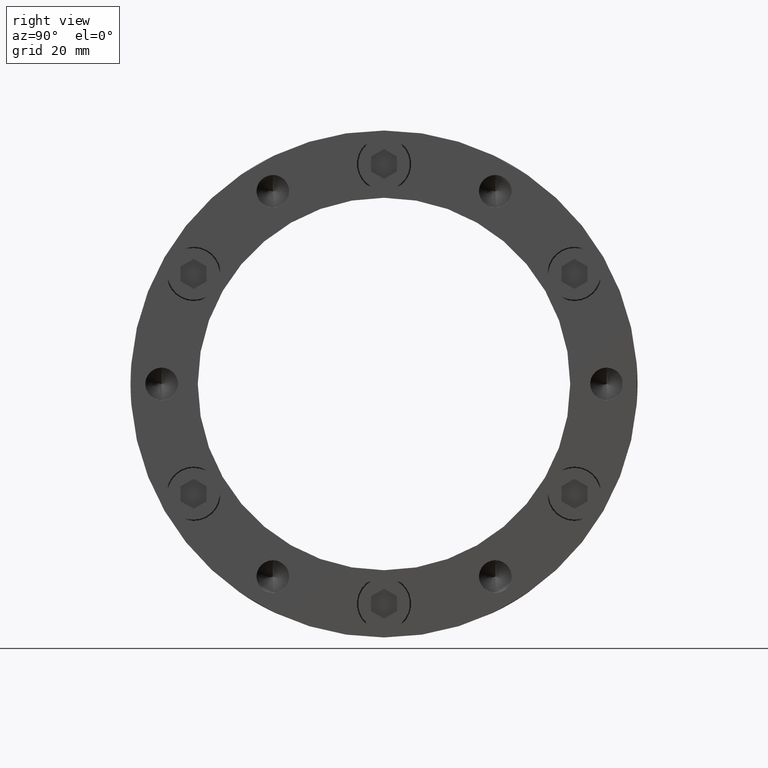
[diagram: clean part render]
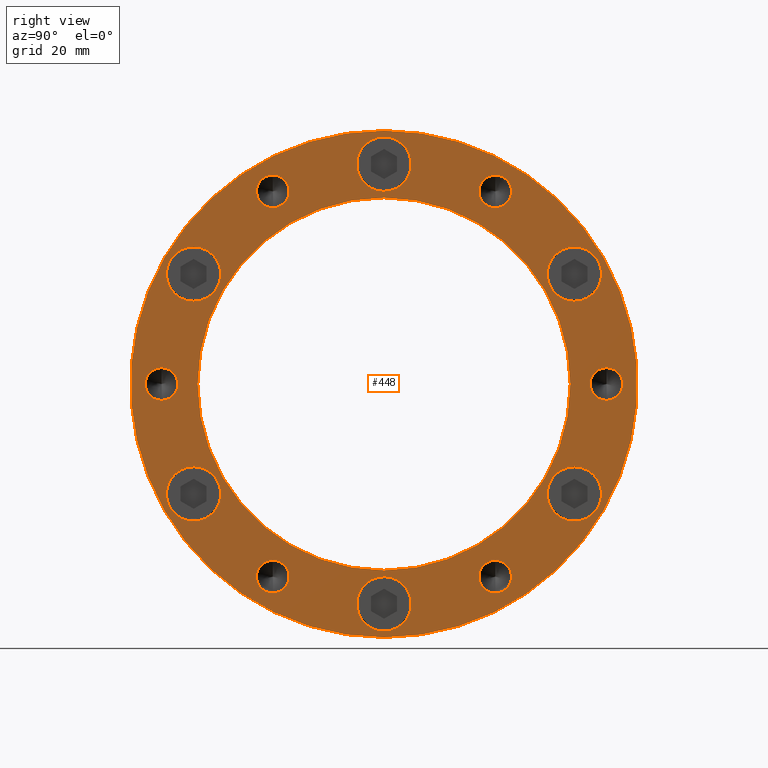
[diagram: same view with one face highlighted and labeled with its STEP entity id]
A machine part, right view. The second image highlights one B-rep face of the part: STEP entity #448.
In plain terms, the highlighted planar face has unit normal (1, 0, 0).
Its self-contained STEP definition (entity closure, byte-faithful):
#18 = EDGE_CURVE ( 'NONE', #847, #848, #1706, .T. ) ;
#22 = EDGE_CURVE ( 'NONE', #850, #851, #1711, .T. ) ;
#26 = EDGE_CURVE ( 'NONE', #854, #855, #1716, .T. ) ;
#30 = EDGE_CURVE ( 'NONE', #858, #859, #1722, .T. ) ;
#34 = EDGE_CURVE ( 'NONE', #862, #863, #1728, .T. ) ;
#38 = EDGE_CURVE ( 'NONE', #866, #867, #1734, .T. ) ;
#42 = EDGE_CURVE ( 'NONE', #870, #871, #1740, .T. ) ;
#46 = EDGE_CURVE ( 'NONE', #874, #875, #1746, .T. ) ;
#50 = EDGE_CURVE ( 'NONE', #878, #879, #1752, .T. ) ;
#54 = EDGE_CURVE ( 'NONE', #880, #1686, #1758, .T. ) ;
#58 = EDGE_CURVE ( 'NONE', #1691, #1678, #1764, .T. ) ;
#62 = EDGE_CURVE ( 'NONE', #1681, #1676, #1770, .T. ) ;
#66 = EDGE_CURVE ( 'NONE', #1697, #1692, #1776, .T. ) ;
#70 = EDGE_CURVE ( 'NONE', #1682, #1680, #1782, .T. ) ;
#90 = EDGE_CURVE ( 'NONE', #1680, #1682, #1817, .T. ) ;
#91 = EDGE_CURVE ( 'NONE', #1692, #1697, #1818, .T. ) ;
#92 = EDGE_CURVE ( 'NONE', #1676, #1681, #1819, .T. ) ;
#93 = EDGE_CURVE ( 'NONE', #1678, #1691, #1820, .T. ) ;
#94 = EDGE_CURVE ( 'NONE', #1686, #880, #1821, .T. ) ;
#95 = EDGE_CURVE ( 'NONE', #879, #878, #1822, .T. ) ;
#97 = EDGE_CURVE ( 'NONE', #875, #874, #1824, .T. ) ;
#99 = EDGE_CURVE ( 'NONE', #871, #870, #1826, .T. ) ;
#101 = EDGE_CURVE ( 'NONE', #867, #866, #1828, .T. ) ;
#103 = EDGE_CURVE ( 'NONE', #863, #862, #1830, .T. ) ;
#105 = EDGE_CURVE ( 'NONE', #859, #858, #1832, .T. ) ;
#107 = EDGE_CURVE ( 'NONE', #855, #854, #1834, .T. ) ;
#108 = EDGE_CURVE ( 'NONE', #851, #850, #1835, .T. ) ;
#109 = EDGE_CURVE ( 'NONE', #848, #847, #1836, .T. ) ;
#186 = CARTESIAN_POINT ( 'NONE',  ( 27.99999999999998900, 0.0000000000000000000, 0.0000000000000000000 ) ) ;
#187 = DIRECTION ( 'NONE',  ( -1.000000000000000000, -0.0000000000000000000, -0.0000000000000000000 ) ) ;
#188 = DIRECTION ( 'NONE',  ( 0.0000000000000000000, 0.0000000000000000000, -1.000000000000000000 ) ) ;
#196 = CARTESIAN_POINT ( 'NONE',  ( 27.99999999999999300, 0.0000000000000000000, 0.0000000000000000000 ) ) ;
#197 = DIRECTION ( 'NONE',  ( -1.000000000000000000, -0.0000000000000000000, -0.0000000000000000000 ) ) ;
#198 = DIRECTION ( 'NONE',  ( 0.0000000000000000000, 0.0000000000000000000, -1.000000000000000000 ) ) ;
#206 = CARTESIAN_POINT ( 'NONE',  ( 27.99999999999998900, 0.0000000000000000000, 42.50000000000002800 ) ) ;
#207 = DIRECTION ( 'NONE',  ( -1.000000000000000000, -0.0000000000000000000, -0.0000000000000000000 ) ) ;
#208 = DIRECTION ( 'NONE',  ( 0.0000000000000000000, 0.0000000000000000000, -1.000000000000000000 ) ) ;
#216 = CARTESIAN_POINT ( 'NONE',  ( 27.99999999999998900, -36.80607966083866200, 21.25000000000001800 ) ) ;
#217 = DIRECTION ( 'NONE',  ( -1.000000000000000000, -0.0000000000000000000, -0.0000000000000000000 ) ) ;
#218 = DIRECTION ( 'NONE',  ( 0.0000000000000000000, 0.0000000000000000000, -1.000000000000000000 ) ) ;
#226 = CARTESIAN_POINT ( 'NONE',  ( 27.99999999999998900, -36.80607966083868400, -21.25000000000000700 ) ) ;
#227 = DIRECTION ( 'NONE',  ( -1.000000000000000000, -0.0000000000000000000, -0.0000000000000000000 ) ) ;
#228 = DIRECTION ( 'NONE',  ( 0.0000000000000000000, 0.0000000000000000000, -1.000000000000000000 ) ) ;
#236 = CARTESIAN_POINT ( 'NONE',  ( 27.99999999999998900, -6.661337999999999900E-015, -42.50000000000003600 ) ) ;
#237 = DIRECTION ( 'NONE',  ( -1.000000000000000000, -0.0000000000000000000, -0.0000000000000000000 ) ) ;
#238 = DIRECTION ( 'NONE',  ( 0.0000000000000000000, 0.0000000000000000000, -1.000000000000000000 ) ) ;
#246 = CARTESIAN_POINT ( 'NONE',  ( 27.99999999999998900, 36.80607966083865500, -21.25000000000003200 ) ) ;
#247 = DIRECTION ( 'NONE',  ( -1.000000000000000000, -0.0000000000000000000, -0.0000000000000000000 ) ) ;
#248 = DIRECTION ( 'NONE',  ( 0.0000000000000000000, 0.0000000000000000000, -1.000000000000000000 ) ) ;
#256 = CARTESIAN_POINT ( 'NONE',  ( 27.99999999999998900, 36.80607966083869100, 21.24999999999998900 ) ) ;
#257 = DIRECTION ( 'NONE',  ( -1.000000000000000000, -0.0000000000000000000, -0.0000000000000000000 ) ) ;
#258 = DIRECTION ( 'NONE',  ( 0.0000000000000000000, 0.0000000000000000000, -1.000000000000000000 ) ) ;
#266 = CARTESIAN_POINT ( 'NONE',  ( 27.99999999999998900, -21.50000000000002800, 37.23909236273085100 ) ) ;
#267 = DIRECTION ( 'NONE',  ( -1.000000000000000000, -0.0000000000000000000, -0.0000000000000000000 ) ) ;
#268 = DIRECTION ( 'NONE',  ( 0.0000000000000000000, 0.0000000000000000000, -1.000000000000000000 ) ) ;
#276 = CARTESIAN_POINT ( 'NONE',  ( 27.99999999999998900, -43.00000000000000700, -2.664535000000000000E-014 ) ) ;
#277 = DIRECTION ( 'NONE',  ( -1.000000000000000000, -0.0000000000000000000, -0.0000000000000000000 ) ) ;
#278 = DIRECTION ( 'NONE',  ( 0.0000000000000000000, 0.0000000000000000000, -1.000000000000000000 ) ) ;
#286 = CARTESIAN_POINT ( 'NONE',  ( 27.99999999999998900, -21.49999999999998900, -37.23909236273087900 ) ) ;
#287 = DIRECTION ( 'NONE',  ( -1.000000000000000000, -0.0000000000000000000, -0.0000000000000000000 ) ) ;
#288 = DIRECTION ( 'NONE',  ( 0.0000000000000000000, 0.0000000000000000000, -1.000000000000000000 ) ) ;
#296 = CARTESIAN_POINT ( 'NONE',  ( 27.99999999999998900, 21.50000000000002100, -37.23909236273085800 ) ) ;
#297 = DIRECTION ( 'NONE',  ( -1.000000000000000000, -0.0000000000000000000, -0.0000000000000000000 ) ) ;
#298 = DIRECTION ( 'NONE',  ( 0.0000000000000000000, 0.0000000000000000000, -1.000000000000000000 ) ) ;
#306 = CARTESIAN_POINT ( 'NONE',  ( 27.99999999999998900, 43.00000000000000700, 1.110223000000000100E-014 ) ) ;
#307 = DIRECTION ( 'NONE',  ( -1.000000000000000000, -0.0000000000000000000, -0.0000000000000000000 ) ) ;
#308 = DIRECTION ( 'NONE',  ( 0.0000000000000000000, 0.0000000000000000000, -1.000000000000000000 ) ) ;
#318 = CARTESIAN_POINT ( 'NONE',  ( 27.99999999999998900, 21.50000000000000700, 37.23909236273086500 ) ) ;
#319 = DIRECTION ( 'NONE',  ( -1.000000000000000000, -0.0000000000000000000, -0.0000000000000000000 ) ) ;
#320 = DIRECTION ( 'NONE',  ( 0.0000000000000000000, 0.0000000000000000000, -1.000000000000000000 ) ) ;
#448 = ADVANCED_FACE ( 'NONE', ( #3002, #3010, #3006, #3004, #3008, #3011, #3012, #3013, #3014, #3015, #3016, #3017, #3018, #3019 ), #2276, .T. ) ;
#733 = AXIS2_PLACEMENT_3D ( 'NONE', #186, #187, #188 ) ;
#735 = AXIS2_PLACEMENT_3D ( 'NONE', #196, #197, #198 ) ;
#737 = AXIS2_PLACEMENT_3D ( 'NONE', #206, #207, #208 ) ;
#739 = AXIS2_PLACEMENT_3D ( 'NONE', #216, #217, #218 ) ;
#741 = AXIS2_PLACEMENT_3D ( 'NONE', #226, #227, #228 ) ;
#743 = AXIS2_PLACEMENT_3D ( 'NONE', #236, #237, #238 ) ;
#745 = AXIS2_PLACEMENT_3D ( 'NONE', #246, #247, #248 ) ;
#747 = AXIS2_PLACEMENT_3D ( 'NONE', #256, #257, #258 ) ;
#749 = AXIS2_PLACEMENT_3D ( 'NONE', #266, #267, #268 ) ;
#751 = AXIS2_PLACEMENT_3D ( 'NONE', #276, #277, #278 ) ;
#753 = AXIS2_PLACEMENT_3D ( 'NONE', #286, #287, #288 ) ;
#755 = AXIS2_PLACEMENT_3D ( 'NONE', #296, #297, #298 ) ;
#757 = AXIS2_PLACEMENT_3D ( 'NONE', #306, #307, #308 ) ;
#759 = AXIS2_PLACEMENT_3D ( 'NONE', #318, #319, #320 ) ;
#766 = AXIS2_PLACEMENT_3D ( 'NONE', #1963, #1964, #1965 ) ;
#767 = AXIS2_PLACEMENT_3D ( 'NONE', #1966, #1967, #1968 ) ;
#768 = AXIS2_PLACEMENT_3D ( 'NONE', #1969, #1970, #1971 ) ;
#769 = AXIS2_PLACEMENT_3D ( 'NONE', #1972, #1973, #1974 ) ;
#770 = AXIS2_PLACEMENT_3D ( 'NONE', #1975, #1976, #1977 ) ;
#771 = AXIS2_PLACEMENT_3D ( 'NONE', #1978, #1979, #1980 ) ;
#773 = AXIS2_PLACEMENT_3D ( 'NONE', #1984, #1985, #1986 ) ;
#775 = AXIS2_PLACEMENT_3D ( 'NONE', #1990, #1991, #1992 ) ;
#777 = AXIS2_PLACEMENT_3D ( 'NONE', #1996, #1997, #1998 ) ;
#779 = AXIS2_PLACEMENT_3D ( 'NONE', #2002, #2003, #2004 ) ;
#781 = AXIS2_PLACEMENT_3D ( 'NONE', #2008, #2009, #2010 ) ;
#783 = AXIS2_PLACEMENT_3D ( 'NONE', #2014, #2015, #2016 ) ;
#847 = VERTEX_POINT ( 'NONE', #4183 ) ;
#848 = VERTEX_POINT ( 'NONE', #4184 ) ;
#850 = VERTEX_POINT ( 'NONE', #4186 ) ;
#851 = VERTEX_POINT ( 'NONE', #4187 ) ;
#854 = VERTEX_POINT ( 'NONE', #4190 ) ;
#855 = VERTEX_POINT ( 'NONE', #4191 ) ;
#858 = VERTEX_POINT ( 'NONE', #4194 ) ;
#859 = VERTEX_POINT ( 'NONE', #4195 ) ;
#862 = VERTEX_POINT ( 'NONE', #4198 ) ;
#863 = VERTEX_POINT ( 'NONE', #4199 ) ;
#866 = VERTEX_POINT ( 'NONE', #4202 ) ;
#867 = VERTEX_POINT ( 'NONE', #4203 ) ;
#870 = VERTEX_POINT ( 'NONE', #4206 ) ;
#871 = VERTEX_POINT ( 'NONE', #4207 ) ;
#874 = VERTEX_POINT ( 'NONE', #4210 ) ;
#875 = VERTEX_POINT ( 'NONE', #4211 ) ;
#878 = VERTEX_POINT ( 'NONE', #4214 ) ;
#879 = VERTEX_POINT ( 'NONE', #4215 ) ;
#880 = VERTEX_POINT ( 'NONE', #4216 ) ;
#1245 = EDGE_LOOP ( 'NONE', ( #1399, #1400 ) ) ;
#1246 = EDGE_LOOP ( 'NONE', ( #1409, #1410 ) ) ;
#1248 = EDGE_LOOP ( 'NONE', ( #1401, #1402 ) ) ;
#1249 = EDGE_LOOP ( 'NONE', ( #1407, #1408 ) ) ;
#1250 = EDGE_LOOP ( 'NONE', ( #1405, #1406 ) ) ;
#1251 = EDGE_LOOP ( 'NONE', ( #1403, #1404 ) ) ;
#1252 = EDGE_LOOP ( 'NONE', ( #1411, #1412 ) ) ;
#1253 = EDGE_LOOP ( 'NONE', ( #1413, #1414 ) ) ;
#1254 = EDGE_LOOP ( 'NONE', ( #1415, #1416 ) ) ;
#1255 = EDGE_LOOP ( 'NONE', ( #1417, #1418 ) ) ;
#1256 = EDGE_LOOP ( 'NONE', ( #1419, #1420 ) ) ;
#1257 = EDGE_LOOP ( 'NONE', ( #1421, #1422 ) ) ;
#1258 = EDGE_LOOP ( 'NONE', ( #1423, #1424 ) ) ;
#1259 = EDGE_LOOP ( 'NONE', ( #1425, #1426 ) ) ;
#1399 = ORIENTED_EDGE ( 'NONE', *, *, #22, .T. ) ;
#1400 = ORIENTED_EDGE ( 'NONE', *, *, #108, .T. ) ;
#1401 = ORIENTED_EDGE ( 'NONE', *, *, #26, .T. ) ;
#1402 = ORIENTED_EDGE ( 'NONE', *, *, #107, .T. ) ;
#1403 = ORIENTED_EDGE ( 'NONE', *, *, #30, .T. ) ;
#1404 = ORIENTED_EDGE ( 'NONE', *, *, #105, .T. ) ;
#1405 = ORIENTED_EDGE ( 'NONE', *, *, #34, .T. ) ;
#1406 = ORIENTED_EDGE ( 'NONE', *, *, #103, .T. ) ;
#1407 = ORIENTED_EDGE ( 'NONE', *, *, #38, .T. ) ;
#1408 = ORIENTED_EDGE ( 'NONE', *, *, #101, .T. ) ;
#1409 = ORIENTED_EDGE ( 'NONE', *, *, #42, .T. ) ;
#1410 = ORIENTED_EDGE ( 'NONE', *, *, #99, .T. ) ;
#1411 = ORIENTED_EDGE ( 'NONE', *, *, #46, .T. ) ;
#1412 = ORIENTED_EDGE ( 'NONE', *, *, #97, .T. ) ;
#1413 = ORIENTED_EDGE ( 'NONE', *, *, #50, .T. ) ;
#1414 = ORIENTED_EDGE ( 'NONE', *, *, #95, .T. ) ;
#1415 = ORIENTED_EDGE ( 'NONE', *, *, #54, .T. ) ;
#1416 = ORIENTED_EDGE ( 'NONE', *, *, #94, .T. ) ;
#1417 = ORIENTED_EDGE ( 'NONE', *, *, #58, .T. ) ;
#1418 = ORIENTED_EDGE ( 'NONE', *, *, #93, .T. ) ;
#1419 = ORIENTED_EDGE ( 'NONE', *, *, #62, .T. ) ;
#1420 = ORIENTED_EDGE ( 'NONE', *, *, #92, .T. ) ;
#1421 = ORIENTED_EDGE ( 'NONE', *, *, #66, .T. ) ;
#1422 = ORIENTED_EDGE ( 'NONE', *, *, #91, .T. ) ;
#1423 = ORIENTED_EDGE ( 'NONE', *, *, #70, .T. ) ;
#1424 = ORIENTED_EDGE ( 'NONE', *, *, #90, .T. ) ;
#1425 = ORIENTED_EDGE ( 'NONE', *, *, #109, .F. ) ;
#1426 = ORIENTED_EDGE ( 'NONE', *, *, #18, .F. ) ;
#1676 = VERTEX_POINT ( 'NONE', #4219 ) ;
#1678 = VERTEX_POINT ( 'NONE', #4222 ) ;
#1680 = VERTEX_POINT ( 'NONE', #4223 ) ;
#1681 = VERTEX_POINT ( 'NONE', #4217 ) ;
#1682 = VERTEX_POINT ( 'NONE', #4224 ) ;
#1686 = VERTEX_POINT ( 'NONE', #4227 ) ;
#1691 = VERTEX_POINT ( 'NONE', #4232 ) ;
#1692 = VERTEX_POINT ( 'NONE', #4233 ) ;
#1697 = VERTEX_POINT ( 'NONE', #4238 ) ;
#1706 = CIRCLE ( 'NONE', #733, 49.00000000000000000 ) ;
#1711 = CIRCLE ( 'NONE', #735, 36.00000000000000700 ) ;
#1716 = CIRCLE ( 'NONE', #737, 5.249999999999997300 ) ;
#1722 = CIRCLE ( 'NONE', #739, 5.250000000000000900 ) ;
#1728 = CIRCLE ( 'NONE', #741, 5.250000000000000900 ) ;
#1734 = CIRCLE ( 'NONE', #743, 5.249999999999997300 ) ;
#1740 = CIRCLE ( 'NONE', #745, 5.250000000000000900 ) ;
#1746 = CIRCLE ( 'NONE', #747, 5.250000000000000900 ) ;
#1752 = CIRCLE ( 'NONE', #749, 3.149999999999999900 ) ;
#1758 = CIRCLE ( 'NONE', #751, 3.149999999999999900 ) ;
#1764 = CIRCLE ( 'NONE', #753, 3.149999999999999900 ) ;
#1770 = CIRCLE ( 'NONE', #755, 3.149999999999999900 ) ;
#1776 = CIRCLE ( 'NONE', #757, 3.149999999999999900 ) ;
#1782 = CIRCLE ( 'NONE', #759, 3.149999999999999900 ) ;
#1817 = CIRCLE ( 'NONE', #766, 3.149999999999999900 ) ;
#1818 = CIRCLE ( 'NONE', #767, 3.149999999999999900 ) ;
#1819 = CIRCLE ( 'NONE', #768, 3.149999999999999900 ) ;
#1820 = CIRCLE ( 'NONE', #769, 3.149999999999999900 ) ;
#1821 = CIRCLE ( 'NONE', #770, 3.149999999999999900 ) ;
#1822 = CIRCLE ( 'NONE', #771, 3.149999999999999900 ) ;
#1824 = CIRCLE ( 'NONE', #773, 5.250000000000000900 ) ;
#1826 = CIRCLE ( 'NONE', #775, 5.250000000000000900 ) ;
#1828 = CIRCLE ( 'NONE', #777, 5.249999999999997300 ) ;
#1830 = CIRCLE ( 'NONE', #779, 5.250000000000000900 ) ;
#1832 = CIRCLE ( 'NONE', #781, 5.250000000000000900 ) ;
#1834 = CIRCLE ( 'NONE', #783, 5.249999999999997300 ) ;
#1835 = CIRCLE ( 'NONE', #4508, 36.00000000000000700 ) ;
#1836 = CIRCLE ( 'NONE', #4509, 49.00000000000000000 ) ;
#1963 = CARTESIAN_POINT ( 'NONE',  ( 27.99999999999998900, 21.50000000000000700, 37.23909236273086500 ) ) ;
#1964 = DIRECTION ( 'NONE',  ( -1.000000000000000000, -0.0000000000000000000, -0.0000000000000000000 ) ) ;
#1965 = DIRECTION ( 'NONE',  ( 0.0000000000000000000, 0.0000000000000000000, -1.000000000000000000 ) ) ;
#1966 = CARTESIAN_POINT ( 'NONE',  ( 27.99999999999998900, 43.00000000000000700, 1.110223000000000100E-014 ) ) ;
#1967 = DIRECTION ( 'NONE',  ( -1.000000000000000000, -0.0000000000000000000, -0.0000000000000000000 ) ) ;
#1968 = DIRECTION ( 'NONE',  ( 0.0000000000000000000, 0.0000000000000000000, -1.000000000000000000 ) ) ;
#1969 = CARTESIAN_POINT ( 'NONE',  ( 27.99999999999998900, 21.50000000000002100, -37.23909236273085800 ) ) ;
#1970 = DIRECTION ( 'NONE',  ( -1.000000000000000000, -0.0000000000000000000, -0.0000000000000000000 ) ) ;
#1971 = DIRECTION ( 'NONE',  ( 0.0000000000000000000, 0.0000000000000000000, -1.000000000000000000 ) ) ;
#1972 = CARTESIAN_POINT ( 'NONE',  ( 27.99999999999998900, -21.49999999999998900, -37.23909236273087900 ) ) ;
#1973 = DIRECTION ( 'NONE',  ( -1.000000000000000000, -0.0000000000000000000, -0.0000000000000000000 ) ) ;
#1974 = DIRECTION ( 'NONE',  ( 0.0000000000000000000, 0.0000000000000000000, -1.000000000000000000 ) ) ;
#1975 = CARTESIAN_POINT ( 'NONE',  ( 27.99999999999998900, -43.00000000000000700, -2.664535000000000000E-014 ) ) ;
#1976 = DIRECTION ( 'NONE',  ( -1.000000000000000000, -0.0000000000000000000, -0.0000000000000000000 ) ) ;
#1977 = DIRECTION ( 'NONE',  ( 0.0000000000000000000, 0.0000000000000000000, -1.000000000000000000 ) ) ;
#1978 = CARTESIAN_POINT ( 'NONE',  ( 27.99999999999998900, -21.50000000000002800, 37.23909236273085100 ) ) ;
#1979 = DIRECTION ( 'NONE',  ( -1.000000000000000000, -0.0000000000000000000, -0.0000000000000000000 ) ) ;
#1980 = DIRECTION ( 'NONE',  ( 0.0000000000000000000, 0.0000000000000000000, -1.000000000000000000 ) ) ;
#1984 = CARTESIAN_POINT ( 'NONE',  ( 27.99999999999998900, 36.80607966083869100, 21.24999999999998900 ) ) ;
#1985 = DIRECTION ( 'NONE',  ( -1.000000000000000000, -0.0000000000000000000, -0.0000000000000000000 ) ) ;
#1986 = DIRECTION ( 'NONE',  ( 0.0000000000000000000, 0.0000000000000000000, -1.000000000000000000 ) ) ;
#1990 = CARTESIAN_POINT ( 'NONE',  ( 27.99999999999998900, 36.80607966083865500, -21.25000000000003200 ) ) ;
#1991 = DIRECTION ( 'NONE',  ( -1.000000000000000000, -0.0000000000000000000, -0.0000000000000000000 ) ) ;
#1992 = DIRECTION ( 'NONE',  ( 0.0000000000000000000, 0.0000000000000000000, -1.000000000000000000 ) ) ;
#1996 = CARTESIAN_POINT ( 'NONE',  ( 27.99999999999998900, -6.661337999999999900E-015, -42.50000000000003600 ) ) ;
#1997 = DIRECTION ( 'NONE',  ( -1.000000000000000000, -0.0000000000000000000, -0.0000000000000000000 ) ) ;
#1998 = DIRECTION ( 'NONE',  ( 0.0000000000000000000, 0.0000000000000000000, -1.000000000000000000 ) ) ;
#2002 = CARTESIAN_POINT ( 'NONE',  ( 27.99999999999998900, -36.80607966083868400, -21.25000000000000700 ) ) ;
#2003 = DIRECTION ( 'NONE',  ( -1.000000000000000000, -0.0000000000000000000, -0.0000000000000000000 ) ) ;
#2004 = DIRECTION ( 'NONE',  ( 0.0000000000000000000, 0.0000000000000000000, -1.000000000000000000 ) ) ;
#2008 = CARTESIAN_POINT ( 'NONE',  ( 27.99999999999998900, -36.80607966083866200, 21.25000000000001800 ) ) ;
#2009 = DIRECTION ( 'NONE',  ( -1.000000000000000000, -0.0000000000000000000, -0.0000000000000000000 ) ) ;
#2010 = DIRECTION ( 'NONE',  ( 0.0000000000000000000, 0.0000000000000000000, -1.000000000000000000 ) ) ;
#2014 = CARTESIAN_POINT ( 'NONE',  ( 27.99999999999998900, 0.0000000000000000000, 42.50000000000002800 ) ) ;
#2015 = DIRECTION ( 'NONE',  ( -1.000000000000000000, -0.0000000000000000000, -0.0000000000000000000 ) ) ;
#2016 = DIRECTION ( 'NONE',  ( 0.0000000000000000000, 0.0000000000000000000, -1.000000000000000000 ) ) ;
#2017 = CARTESIAN_POINT ( 'NONE',  ( 27.99999999999999300, 0.0000000000000000000, 0.0000000000000000000 ) ) ;
#2018 = DIRECTION ( 'NONE',  ( -1.000000000000000000, -0.0000000000000000000, -0.0000000000000000000 ) ) ;
#2019 = DIRECTION ( 'NONE',  ( 0.0000000000000000000, 0.0000000000000000000, -1.000000000000000000 ) ) ;
#2020 = CARTESIAN_POINT ( 'NONE',  ( 27.99999999999998900, 0.0000000000000000000, 0.0000000000000000000 ) ) ;
#2021 = DIRECTION ( 'NONE',  ( -1.000000000000000000, -0.0000000000000000000, -0.0000000000000000000 ) ) ;
#2022 = DIRECTION ( 'NONE',  ( 0.0000000000000000000, 0.0000000000000000000, -1.000000000000000000 ) ) ;
#2271 = DIRECTION ( 'NONE',  ( 1.000000000000000000, -0.0000000000000000000, 0.0000000000000000000 ) ) ;
#2274 = CARTESIAN_POINT ( 'NONE',  ( 27.99999999999998900, 42.50000000000000000, 0.0000000000000000000 ) ) ;
#2276 = PLANE ( 'NONE',  #4575 ) ;
#2277 = DIRECTION ( 'NONE',  ( 0.0000000000000000000, 0.0000000000000000000, -1.000000000000000000 ) ) ;
#3002 = FACE_BOUND ( 'NONE', #1245, .T. ) ;
#3004 = FACE_BOUND ( 'NONE', #1250, .T. ) ;
#3006 = FACE_BOUND ( 'NONE', #1251, .T. ) ;
#3008 = FACE_BOUND ( 'NONE', #1249, .T. ) ;
#3010 = FACE_BOUND ( 'NONE', #1248, .T. ) ;
#3011 = FACE_BOUND ( 'NONE', #1246, .T. ) ;
#3012 = FACE_BOUND ( 'NONE', #1252, .T. ) ;
#3013 = FACE_BOUND ( 'NONE', #1253, .T. ) ;
#3014 = FACE_BOUND ( 'NONE', #1254, .T. ) ;
#3015 = FACE_BOUND ( 'NONE', #1255, .T. ) ;
#3016 = FACE_BOUND ( 'NONE', #1256, .T. ) ;
#3017 = FACE_BOUND ( 'NONE', #1257, .T. ) ;
#3018 = FACE_BOUND ( 'NONE', #1258, .T. ) ;
#3019 = FACE_OUTER_BOUND ( 'NONE', #1259, .T. ) ;
#4183 = CARTESIAN_POINT ( 'NONE',  ( 27.99999999999998900, 6.000769315822030900E-015, 49.00000000000000000 ) ) ;
#4184 = CARTESIAN_POINT ( 'NONE',  ( 27.99999999999998900, 0.0000000000000000000, -49.00000000000000000 ) ) ;
#4186 = CARTESIAN_POINT ( 'NONE',  ( 27.99999999999999300, 0.0000000000000000000, -36.00000000000000700 ) ) ;
#4187 = CARTESIAN_POINT ( 'NONE',  ( 27.99999999999999300, 4.408728476930471600E-015, 36.00000000000000700 ) ) ;
#4190 = CARTESIAN_POINT ( 'NONE',  ( 27.99999999999998900, 0.0000000000000000000, 37.25000000000003600 ) ) ;
#4191 = CARTESIAN_POINT ( 'NONE',  ( 27.99999999999998900, 6.429395695523607100E-016, 47.75000000000002800 ) ) ;
#4194 = CARTESIAN_POINT ( 'NONE',  ( 27.99999999999998900, -36.80607966083866200, 16.00000000000001800 ) ) ;
#4195 = CARTESIAN_POINT ( 'NONE',  ( 27.99999999999998900, -36.80607966083866200, 26.50000000000002100 ) ) ;
#4198 = CARTESIAN_POINT ( 'NONE',  ( 27.99999999999998900, -36.80607966083868400, -26.50000000000001100 ) ) ;
#4199 = CARTESIAN_POINT ( 'NONE',  ( 27.99999999999998900, -36.80607966083868400, -16.00000000000000700 ) ) ;
#4202 = CARTESIAN_POINT ( 'NONE',  ( 27.99999999999998900, -6.661337999999999900E-015, -47.75000000000003600 ) ) ;
#4203 = CARTESIAN_POINT ( 'NONE',  ( 27.99999999999998900, -6.018398430447639500E-015, -37.25000000000004300 ) ) ;
#4206 = CARTESIAN_POINT ( 'NONE',  ( 27.99999999999998900, 36.80607966083865500, -26.50000000000003600 ) ) ;
#4207 = CARTESIAN_POINT ( 'NONE',  ( 27.99999999999998900, 36.80607966083865500, -16.00000000000003200 ) ) ;
#4210 = CARTESIAN_POINT ( 'NONE',  ( 27.99999999999998900, 36.80607966083869100, 15.99999999999998600 ) ) ;
#4211 = CARTESIAN_POINT ( 'NONE',  ( 27.99999999999998900, 36.80607966083869100, 26.49999999999998900 ) ) ;
#4214 = CARTESIAN_POINT ( 'NONE',  ( 27.99999999999998900, -21.50000000000002800, 34.08909236273085200 ) ) ;
#4215 = CARTESIAN_POINT ( 'NONE',  ( 27.99999999999998900, -21.50000000000002800, 40.38909236273085700 ) ) ;
#4216 = CARTESIAN_POINT ( 'NONE',  ( 27.99999999999998900, -43.00000000000000700, -3.150000000000026600 ) ) ;
#4217 = CARTESIAN_POINT ( 'NONE',  ( 27.99999999999998900, 21.50000000000002100, -40.38909236273086400 ) ) ;
#4219 = CARTESIAN_POINT ( 'NONE',  ( 27.99999999999998900, 21.50000000000002100, -34.08909236273086000 ) ) ;
#4222 = CARTESIAN_POINT ( 'NONE',  ( 27.99999999999998900, -21.49999999999998900, -34.08909236273088100 ) ) ;
#4223 = CARTESIAN_POINT ( 'NONE',  ( 27.99999999999998900, 21.50000000000000700, 40.38909236273087100 ) ) ;
#4224 = CARTESIAN_POINT ( 'NONE',  ( 27.99999999999998900, 21.50000000000000700, 34.08909236273086700 ) ) ;
#4227 = CARTESIAN_POINT ( 'NONE',  ( 27.99999999999998900, -43.00000000000000700, 3.149999999999973700 ) ) ;
#4232 = CARTESIAN_POINT ( 'NONE',  ( 27.99999999999998900, -21.49999999999998900, -40.38909236273087800 ) ) ;
#4233 = CARTESIAN_POINT ( 'NONE',  ( 27.99999999999998900, 43.00000000000000700, 3.150000000000011500 ) ) ;
#4238 = CARTESIAN_POINT ( 'NONE',  ( 27.99999999999998900, 43.00000000000000700, -3.149999999999988800 ) ) ;
#4508 = AXIS2_PLACEMENT_3D ( 'NONE', #2017, #2018, #2019 ) ;
#4509 = AXIS2_PLACEMENT_3D ( 'NONE', #2020, #2021, #2022 ) ;
#4575 = AXIS2_PLACEMENT_3D ( 'NONE', #2274, #2271, #2277 ) ;